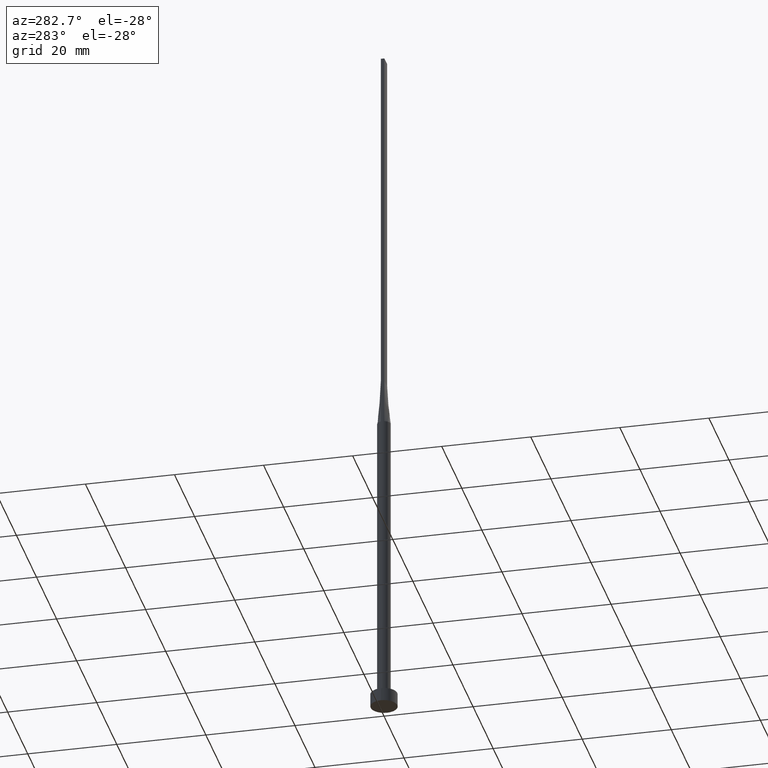
[diagram: clean part render]
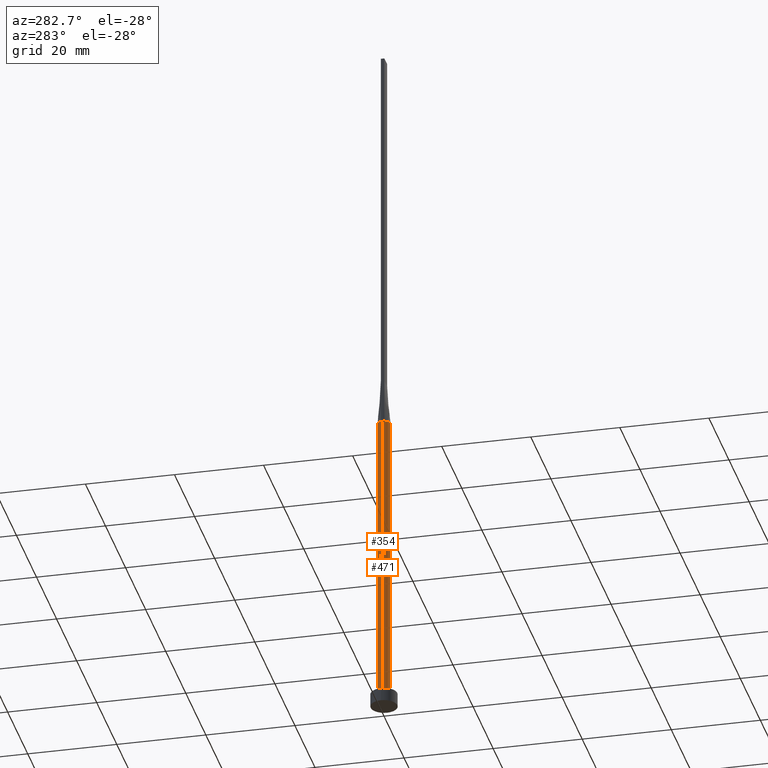
[diagram: same view with one multi-face feature highlighted, each face labeled with its STEP entity id]
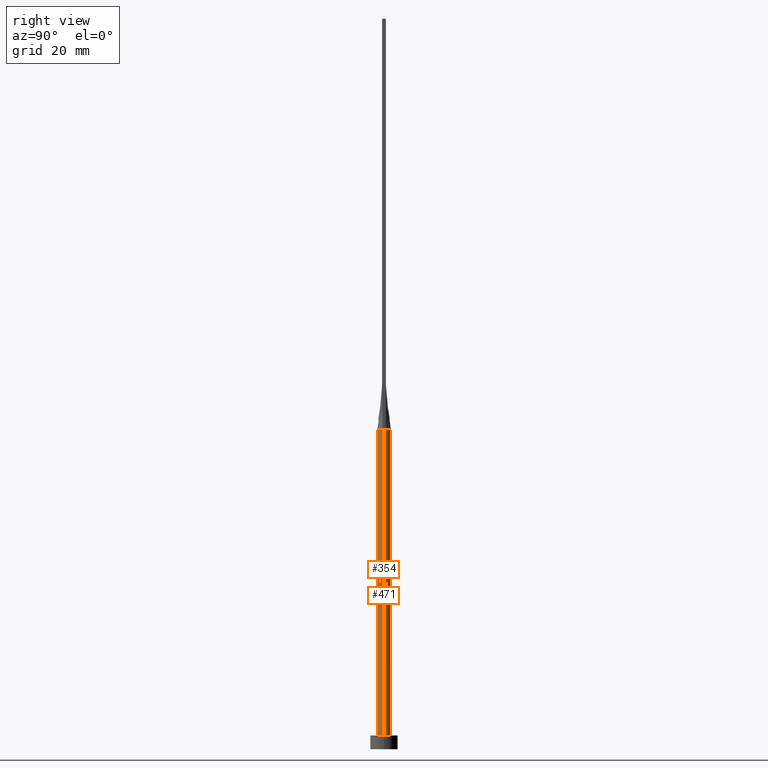
[diagram: same view with one multi-face feature highlighted, each face labeled with its STEP entity id]
A machine part, auxiliary view. The highlighted faces form ONE feature: a constant-radius fillet chain: 2 tangent blend faces with common blend radius 1.5 mm. The faces share edges in the B-rep.
A second angle (right view) of the same feature is appended — it is thin or edge-on in the first view.
Their STEP definitions:
[1] entity #471 (Cylinder):
#15 = DIRECTION ( 'NONE',  ( 0.000000000000000000, 0.000000000000000000, 1.000000000000000000 ) ) ;
#18 = ORIENTED_EDGE ( 'NONE', *, *, #419, .F. ) ;
#25 = CIRCLE ( 'NONE', #169, 1.500000000000000222 ) ;
#42 = CARTESIAN_POINT ( 'NONE',  ( 1.114527776139990101, 1.017390422009413431, 69.99999999999998579 ) ) ;
#43 = CARTESIAN_POINT ( 'NONE',  ( 0.000000000000000000, 0.000000000000000000, 70.00000000000000000 ) ) ;
#48 = EDGE_CURVE ( 'NONE', #238, #102, #160, .T. ) ;
#66 = DIRECTION ( 'NONE',  ( -0.000000000000000000, -0.000000000000000000, -1.000000000000000000 ) ) ;
#75 = VERTEX_POINT ( 'NONE', #165 ) ;
#79 = CARTESIAN_POINT ( 'NONE',  ( 0.1885753531885901724, 1.500000000000000666, 70.00000000000001421 ) ) ;
#87 = EDGE_CURVE ( 'NONE', #341, #238, #520, .T. ) ;
#91 = ORIENTED_EDGE ( 'NONE', *, *, #131, .T. ) ;
#94 = DIRECTION ( 'NONE',  ( 1.000000000000000000, 0.000000000000000000, 0.000000000000000000 ) ) ;
#98 = CARTESIAN_POINT ( 'NONE',  ( 0.000000000000000000, 0.000000000000000000, 70.00000000000000000 ) ) ;
#101 = EDGE_CURVE ( 'NONE', #296, #75, #271, .T. ) ;
#102 = VERTEX_POINT ( 'NONE', #140 ) ;
#112 = B_SPLINE_CURVE_WITH_KNOTS ( 'NONE', 3,
 ( #167, #533, #493, #537, #42, #456, #312, #363, #79, #127, #410, #579, #316, #494, #266, #377, #336, #225 ),
 .UNSPECIFIED., .F., .F.,
 ( 4, 2, 2, 2, 2, 2, 2, 2, 4 ),
 ( 0.000000000000000000, 0.1250000000000000833, 0.2500000000000001665, 0.3750000000000001110, 0.5000000000000001110, 0.6250000000000002220, 0.7500000000000001110, 0.8750000000000001110, 1.000000000000000000 ),
 .UNSPECIFIED. ) ;
#115 = CARTESIAN_POINT ( 'NONE',  ( -1.500000000000000222, 0.000000000000000000, 70.00000000000000000 ) ) ;
#127 = CARTESIAN_POINT ( 'NONE',  ( -0.1885753531885899226, 1.500000000000000888, 70.00000000000001421 ) ) ;
#131 = EDGE_CURVE ( 'NONE', #75, #102, #25, .T. ) ;
#140 = CARTESIAN_POINT ( 'NONE',  ( -1.500000000000000222, 0.000000000000000000, 3.000000000000000000 ) ) ;
#153 = CARTESIAN_POINT ( 'NONE',  ( 0.000000000000000000, 0.000000000000000000, 70.00000000000000000 ) ) ;
#160 = LINE ( 'NONE', #115, #369 ) ;
#165 = CARTESIAN_POINT ( 'NONE',  ( 1.500000000000000222, 1.836970198721030181E-16, 3.000000000000000000 ) ) ;
#167 = CARTESIAN_POINT ( 'NONE',  ( 1.442362338805188937, 0.4121038472597355895, 70.00000000000000000 ) ) ;
#169 = AXIS2_PLACEMENT_3D ( 'NONE', #427, #15, #94 ) ;
#216 = CARTESIAN_POINT ( 'NONE',  ( -1.500000000000000222, 8.735352324927310277E-17, 70.00000000000000000 ) ) ;
#225 = CARTESIAN_POINT ( 'NONE',  ( -1.442387148345315895, 0.4121110244020492197, 70.00000000000000000 ) ) ;
#238 = VERTEX_POINT ( 'NONE', #216 ) ;
#239 = DIRECTION ( 'NONE',  ( -1.000000000000000000, 0.000000000000000000, 0.000000000000000000 ) ) ;
#256 = DIRECTION ( 'NONE',  ( 1.000000000000000000, 0.000000000000000000, 0.000000000000000000 ) ) ;
#261 = AXIS2_PLACEMENT_3D ( 'NONE', #43, #311, #256 ) ;
#263 = AXIS2_PLACEMENT_3D ( 'NONE', #153, #66, #239 ) ;
#266 = CARTESIAN_POINT ( 'NONE',  ( -1.212111761082482975, 0.8950936653899578266, 70.00000000000001421 ) ) ;
#271 = LINE ( 'NONE', #380, #272 ) ;
#272 = VECTOR ( 'NONE', #549, 1000.000000000000000 ) ;
#275 = EDGE_CURVE ( 'NONE', #536, #341, #112, .T. ) ;
#286 = DIRECTION ( 'NONE',  ( 0.000000000000000000, 0.000000000000000000, 1.000000000000000000 ) ) ;
#296 = VERTEX_POINT ( 'NONE', #425 ) ;
#311 = DIRECTION ( 'NONE',  ( 0.000000000000000000, 0.000000000000000000, 1.000000000000000000 ) ) ;
#312 = CARTESIAN_POINT ( 'NONE',  ( 0.7158926189626808601, 1.330660769095147966, 69.99999999999998579 ) ) ;
#316 = CARTESIAN_POINT ( 'NONE',  ( -0.8665786268839184014, 1.235433898681765896, 70.00000000000000000 ) ) ;
#320 = CIRCLE ( 'NONE', #477, 1.500000000000000222 ) ;
#329 = ORIENTED_EDGE ( 'NONE', *, *, #87, .F. ) ;
#332 = EDGE_LOOP ( 'NONE', ( #18, #531, #91, #457, #329, #486 ) ) ;
#336 = CARTESIAN_POINT ( 'NONE',  ( -1.409267053536706671, 0.5276477295819163027, 70.00000000000001421 ) ) ;
#340 = FACE_OUTER_BOUND ( 'NONE', #332, .T. ) ;
#341 = VERTEX_POINT ( 'NONE', #503 ) ;
#363 = CARTESIAN_POINT ( 'NONE',  ( 0.3767059690781852654, 1.463302066271692015, 70.00000000000001421 ) ) ;
#369 = VECTOR ( 'NONE', #403, 1000.000000000000000 ) ;
#377 = CARTESIAN_POINT ( 'NONE',  ( -1.359280768448767329, 0.6502025712814717417, 70.00000000000002842 ) ) ;
#380 = CARTESIAN_POINT ( 'NONE',  ( 1.500000000000000222, 1.836970198721030181E-16, 70.00000000000000000 ) ) ;
#387 = CYLINDRICAL_SURFACE ( 'NONE', #263, 1.500000000000000222 ) ;
#403 = DIRECTION ( 'NONE',  ( -0.000000000000000000, -0.000000000000000000, -1.000000000000000000 ) ) ;
#410 = CARTESIAN_POINT ( 'NONE',  ( -0.3767059690781846548, 1.463302066271692015, 70.00000000000000000 ) ) ;
#419 = EDGE_CURVE ( 'NONE', #296, #536, #320, .T. ) ;
#425 = CARTESIAN_POINT ( 'NONE',  ( 1.500000000000000000, -9.795443734464536283E-18, 70.00000000000000000 ) ) ;
#427 = CARTESIAN_POINT ( 'NONE',  ( 0.000000000000000000, 0.000000000000000000, 3.000000000000000000 ) ) ;
#456 = CARTESIAN_POINT ( 'NONE',  ( 0.8665786268839186235, 1.235433898681765008, 69.99999999999998579 ) ) ;
#457 = ORIENTED_EDGE ( 'NONE', *, *, #48, .F. ) ;
#470 = DIRECTION ( 'NONE',  ( 1.000000000000000000, 0.000000000000000000, 0.000000000000000000 ) ) ;
#471 = ADVANCED_FACE ( 'NONE', ( #340 ), #387, .T. ) ;
#477 = AXIS2_PLACEMENT_3D ( 'NONE', #98, #286, #470 ) ;
#479 = CARTESIAN_POINT ( 'NONE',  ( 1.442362338805188937, 0.4121038472597355895, 70.00000000000000000 ) ) ;
#486 = ORIENTED_EDGE ( 'NONE', *, *, #275, .F. ) ;
#493 = CARTESIAN_POINT ( 'NONE',  ( 1.359280768448766663, 0.6502025712814714087, 69.99999999999998579 ) ) ;
#494 = CARTESIAN_POINT ( 'NONE',  ( -1.114527776139989212, 1.017390422009414319, 70.00000000000001421 ) ) ;
#503 = CARTESIAN_POINT ( 'NONE',  ( -1.442387148345315895, 0.4121110244020492197, 70.00000000000000000 ) ) ;
#520 = CIRCLE ( 'NONE', #261, 1.500000000000000222 ) ;
#531 = ORIENTED_EDGE ( 'NONE', *, *, #101, .T. ) ;
#533 = CARTESIAN_POINT ( 'NONE',  ( 1.409267053536706671, 0.5276477295819161917, 70.00000000000000000 ) ) ;
#536 = VERTEX_POINT ( 'NONE', #479 ) ;
#537 = CARTESIAN_POINT ( 'NONE',  ( 1.212111761082483197, 0.8950936653899574935, 70.00000000000001421 ) ) ;
#549 = DIRECTION ( 'NONE',  ( -0.000000000000000000, -0.000000000000000000, -1.000000000000000000 ) ) ;
#579 = CARTESIAN_POINT ( 'NONE',  ( -0.7158926189626803049, 1.330660769095148410, 70.00000000000000000 ) ) ;
[2] entity #354 (Cylinder):
#21 = CARTESIAN_POINT ( 'NONE',  ( -1.442368678646663405, -0.4121057215347019853, 70.00000000000000000 ) ) ;
#23 = DIRECTION ( 'NONE',  ( 1.000000000000000000, 0.000000000000000000, 0.000000000000000000 ) ) ;
#30 = CARTESIAN_POINT ( 'NONE',  ( 0.000000000000000000, 0.000000000000000000, 3.000000000000000000 ) ) ;
#33 = EDGE_LOOP ( 'NONE', ( #126, #107, #55, #258, #401, #538 ) ) ;
#48 = EDGE_CURVE ( 'NONE', #238, #102, #160, .T. ) ;
#51 = AXIS2_PLACEMENT_3D ( 'NONE', #146, #563, #383 ) ;
#52 = DIRECTION ( 'NONE',  ( -1.000000000000000000, 0.000000000000000000, 0.000000000000000000 ) ) ;
#55 = ORIENTED_EDGE ( 'NONE', *, *, #452, .F. ) ;
#56 = DIRECTION ( 'NONE',  ( 1.000000000000000000, 5.329070518200751394E-15, 0.000000000000000000 ) ) ;
#75 = VERTEX_POINT ( 'NONE', #165 ) ;
#90 = CYLINDRICAL_SURFACE ( 'NONE', #308, 1.500000000000000222 ) ;
#101 = EDGE_CURVE ( 'NONE', #296, #75, #271, .T. ) ;
#102 = VERTEX_POINT ( 'NONE', #140 ) ;
#107 = ORIENTED_EDGE ( 'NONE', *, *, #374, .F. ) ;
#115 = CARTESIAN_POINT ( 'NONE',  ( -1.500000000000000222, 0.000000000000000000, 70.00000000000000000 ) ) ;
#126 = ORIENTED_EDGE ( 'NONE', *, *, #101, .F. ) ;
#133 = CARTESIAN_POINT ( 'NONE',  ( 0.000000000000000000, 0.000000000000000000, 70.00000000000000000 ) ) ;
#140 = CARTESIAN_POINT ( 'NONE',  ( -1.500000000000000222, 0.000000000000000000, 3.000000000000000000 ) ) ;
#146 = CARTESIAN_POINT ( 'NONE',  ( 0.000000000000000000, 0.000000000000000000, 70.00000000000000000 ) ) ;
#147 = EDGE_CURVE ( 'NONE', #102, #75, #496, .T. ) ;
#154 = CARTESIAN_POINT ( 'NONE',  ( 0.000000000000000000, 0.000000000000000000, 70.00000000000000000 ) ) ;
#160 = LINE ( 'NONE', #115, #369 ) ;
#165 = CARTESIAN_POINT ( 'NONE',  ( 1.500000000000000222, 1.836970198721030181E-16, 3.000000000000000000 ) ) ;
#177 = EDGE_CURVE ( 'NONE', #238, #426, #398, .T. ) ;
#185 = DIRECTION ( 'NONE',  ( -0.000000000000000000, -0.000000000000000000, -1.000000000000000000 ) ) ;
#189 = AXIS2_PLACEMENT_3D ( 'NONE', #133, #282, #56 ) ;
#190 = CIRCLE ( 'NONE', #51, 1.500000000000000222 ) ;
#216 = CARTESIAN_POINT ( 'NONE',  ( -1.500000000000000222, 8.735352324927310277E-17, 70.00000000000000000 ) ) ;
#238 = VERTEX_POINT ( 'NONE', #216 ) ;
#248 = AXIS2_PLACEMENT_3D ( 'NONE', #154, #250, #574 ) ;
#250 = DIRECTION ( 'NONE',  ( 0.000000000000000000, 0.000000000000000000, 1.000000000000000000 ) ) ;
#258 = ORIENTED_EDGE ( 'NONE', *, *, #177, .F. ) ;
#271 = LINE ( 'NONE', #380, #272 ) ;
#272 = VECTOR ( 'NONE', #549, 1000.000000000000000 ) ;
#282 = DIRECTION ( 'NONE',  ( 0.000000000000000000, 0.000000000000000000, 1.000000000000000000 ) ) ;
#296 = VERTEX_POINT ( 'NONE', #425 ) ;
#303 = VERTEX_POINT ( 'NONE', #326 ) ;
#308 = AXIS2_PLACEMENT_3D ( 'NONE', #333, #185, #52 ) ;
#318 = AXIS2_PLACEMENT_3D ( 'NONE', #30, #555, #23 ) ;
#326 = CARTESIAN_POINT ( 'NONE',  ( 1.442393550978850802, -0.4121129214357137083, 70.00000000000000000 ) ) ;
#331 = CIRCLE ( 'NONE', #189, 1.500000000000000222 ) ;
#333 = CARTESIAN_POINT ( 'NONE',  ( 0.000000000000000000, 0.000000000000000000, 70.00000000000000000 ) ) ;
#354 = ADVANCED_FACE ( 'NONE', ( #468 ), #90, .T. ) ;
#369 = VECTOR ( 'NONE', #403, 1000.000000000000000 ) ;
#374 = EDGE_CURVE ( 'NONE', #303, #296, #331, .T. ) ;
#380 = CARTESIAN_POINT ( 'NONE',  ( 1.500000000000000222, 1.836970198721030181E-16, 70.00000000000000000 ) ) ;
#383 = DIRECTION ( 'NONE',  ( 1.000000000000000000, 0.000000000000000000, 0.000000000000000000 ) ) ;
#398 = CIRCLE ( 'NONE', #248, 1.500000000000000222 ) ;
#401 = ORIENTED_EDGE ( 'NONE', *, *, #48, .T. ) ;
#403 = DIRECTION ( 'NONE',  ( -0.000000000000000000, -0.000000000000000000, -1.000000000000000000 ) ) ;
#425 = CARTESIAN_POINT ( 'NONE',  ( 1.500000000000000000, -9.795443734464536283E-18, 70.00000000000000000 ) ) ;
#426 = VERTEX_POINT ( 'NONE', #21 ) ;
#452 = EDGE_CURVE ( 'NONE', #426, #303, #190, .T. ) ;
#468 = FACE_OUTER_BOUND ( 'NONE', #33, .T. ) ;
#496 = CIRCLE ( 'NONE', #318, 1.500000000000000222 ) ;
#538 = ORIENTED_EDGE ( 'NONE', *, *, #147, .T. ) ;
#549 = DIRECTION ( 'NONE',  ( -0.000000000000000000, -0.000000000000000000, -1.000000000000000000 ) ) ;
#555 = DIRECTION ( 'NONE',  ( 0.000000000000000000, 0.000000000000000000, 1.000000000000000000 ) ) ;
#563 = DIRECTION ( 'NONE',  ( 0.000000000000000000, 0.000000000000000000, 1.000000000000000000 ) ) ;
#574 = DIRECTION ( 'NONE',  ( 1.000000000000000000, 0.000000000000000000, 0.000000000000000000 ) ) ;